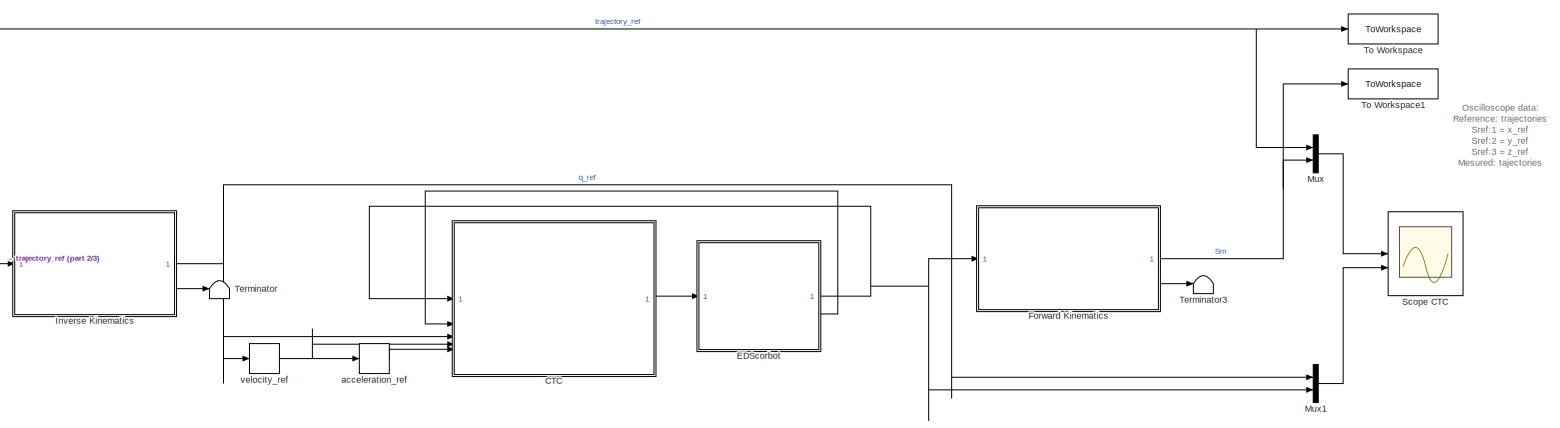
[diagram: root canvas - part 1/3, right side, full height]
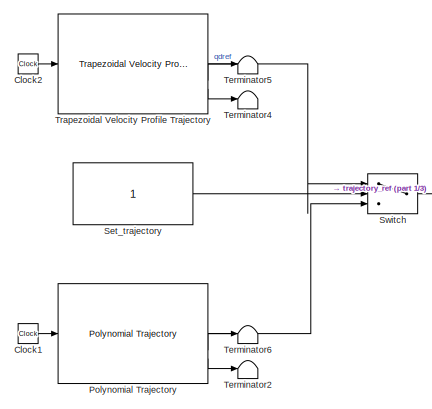
[diagram: root canvas - part 2/3, left side, full height]
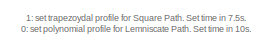
[diagram: root canvas - part 3/3, middle left region]
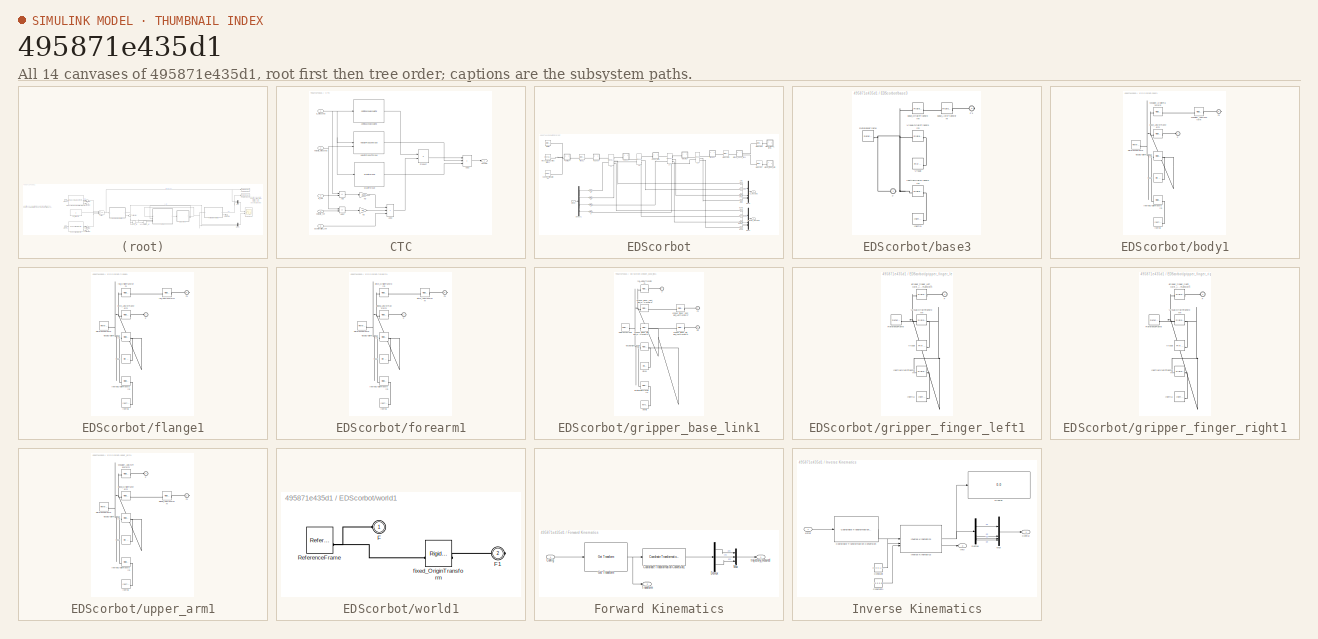
[diagram: thumbnail index - all 14 canvases of the model, root first then tree order]
MODEL slx_495871e435d1
KIND model
CONFIG AbsTol = auto
CONFIG EnableMultiTasking = off
CONFIG FixedStep = auto
CONFIG MaxStep = auto
CONFIG MinStep = auto
CONFIG RelTol = 1e-3
CONFIG SampleTimeConstraint = Unconstrained
CONFIG SolverName = ode23t
CONFIG StartTime = 0.0
CONFIG StopTime = 7.5
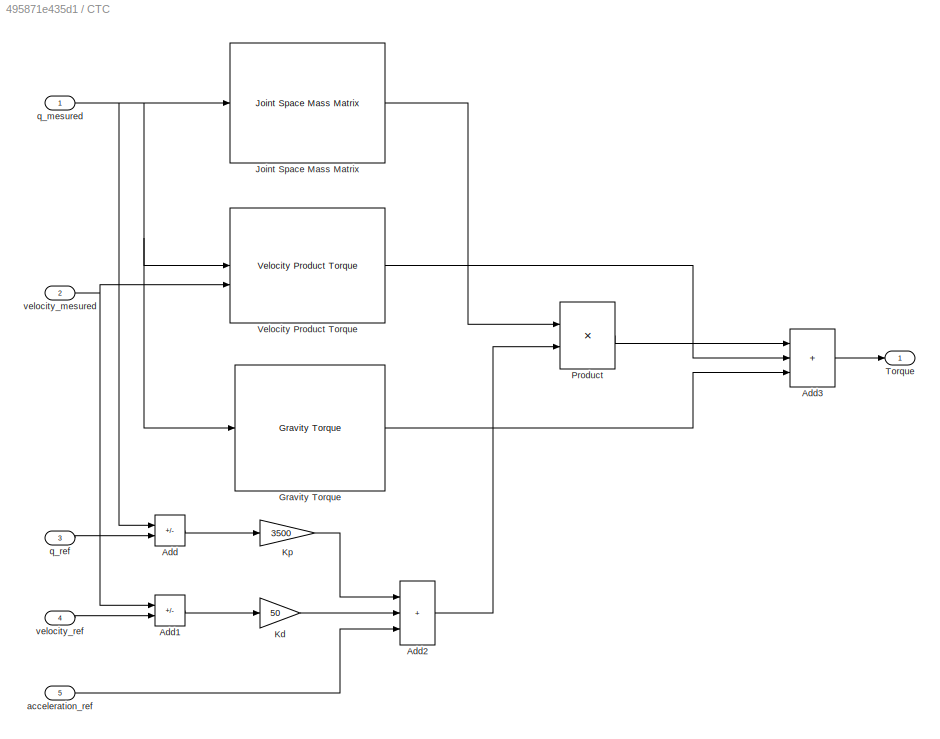
BLOCK [SubSystem] CTC
BLOCK [Sum] CTC/Add
  IconShape = rectangular
  Inputs = -+
BLOCK [Sum] CTC/Add1
  IconShape = rectangular
  Inputs = -+
BLOCK [Sum] CTC/Add2
  IconShape = rectangular
  Inputs = +++
BLOCK [Sum] CTC/Add3
  IconShape = rectangular
  Inputs = +++
BLOCK [Reference] CTC/Gravity Torque  REF=robotmaniplib/Gravity Torque
  SourceBlock = robotmaniplib/Gravity Torque
  SourceType = Gravity Torque
BLOCK [Reference] CTC/Joint Space Mass Matrix  REF=robotmaniplib/Joint Space Mass Matrix
  SourceBlock = robotmaniplib/Joint Space Mass Matrix
  SourceType = Joint Space Mass Matrix
BLOCK [Gain] CTC/Kd
  Gain = 50
BLOCK [Gain] CTC/Kp
  Gain = 3500
BLOCK [Product] CTC/Product
  Multiplication = Matrix(*)
BLOCK [Outport] CTC/Torque
BLOCK [Reference] CTC/Velocity Product Torque  REF=robotmaniplib/Velocity Product Torque
  SourceBlock = robotmaniplib/Velocity Product Torque
  SourceType = Velocity Product Torque
BLOCK [Inport] CTC/acceleration_ref
  Port = 5
BLOCK [Inport] CTC/q_mesured
BLOCK [Inport] CTC/q_ref
  Port = 3
BLOCK [Inport] CTC/velocity_mesured
  Port = 2
BLOCK [Inport] CTC/velocity_ref
  Port = 4
BLOCK [Clock] Clock1
BLOCK [Clock] Clock2
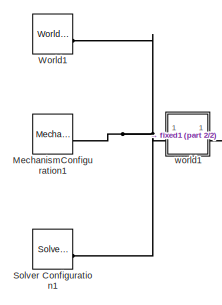
[diagram: EDScorbot - part 1/2, top left region]
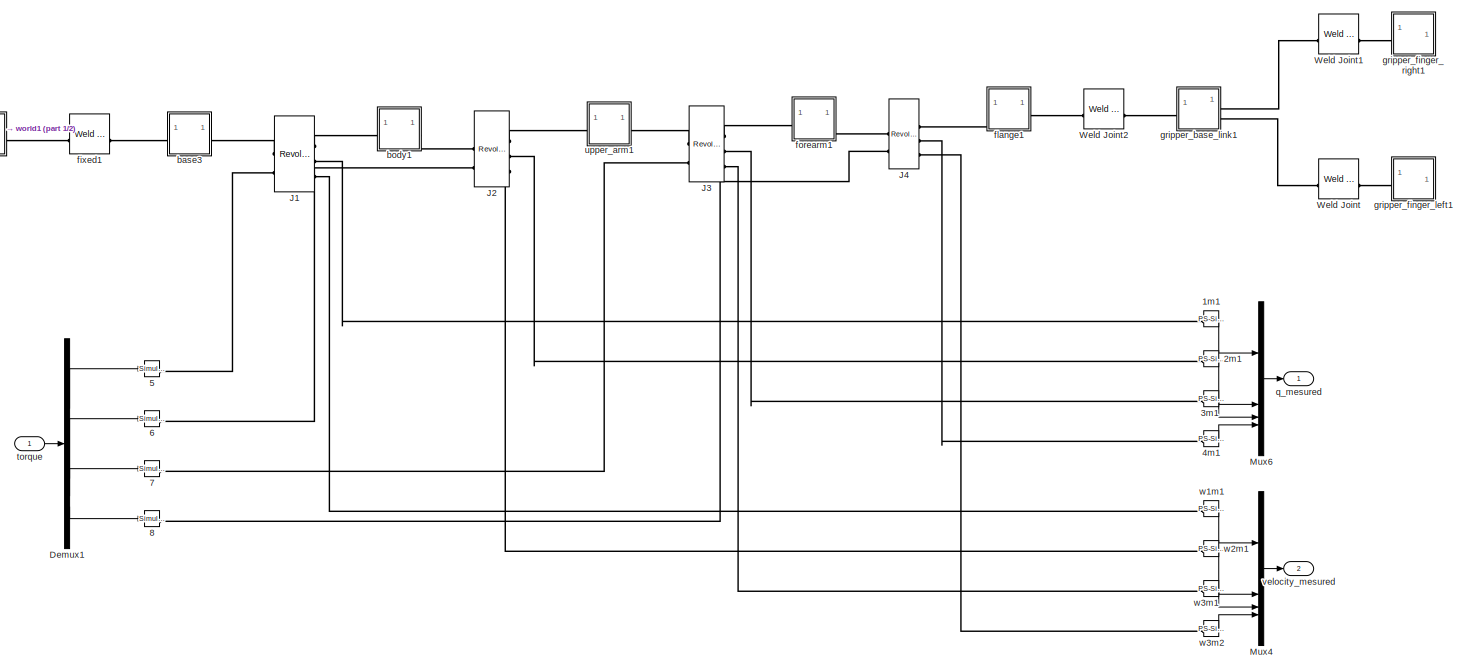
[diagram: EDScorbot - part 2/2, most of the canvas]
BLOCK [SubSystem] EDScorbot
BLOCK [Reference] EDScorbot/1m1  REF=nesl_utility/PS-Simulink
Converter
  SourceBlock = nesl_utility/PS-Simulink\nConverter
  SourceType = PS-Simulink\nConverter
BLOCK [Reference] EDScorbot/2m1  REF=nesl_utility/PS-Simulink
Converter
  SourceBlock = nesl_utility/PS-Simulink\nConverter
  SourceType = PS-Simulink\nConverter
BLOCK [Reference] EDScorbot/3m1  REF=nesl_utility/PS-Simulink
Converter
  SourceBlock = nesl_utility/PS-Simulink\nConverter
  SourceType = PS-Simulink\nConverter
BLOCK [Reference] EDScorbot/4m1  REF=nesl_utility/PS-Simulink
Converter
  SourceBlock = nesl_utility/PS-Simulink\nConverter
  SourceType = PS-Simulink\nConverter
BLOCK [Reference] EDScorbot/5  REF=nesl_utility/Simulink-PS
Converter
  SourceBlock = nesl_utility/Simulink-PS\nConverter
  SourceType = Simulink-PS\nConverter
BLOCK [Reference] EDScorbot/6  REF=nesl_utility/Simulink-PS
Converter
  SourceBlock = nesl_utility/Simulink-PS\nConverter
  SourceType = Simulink-PS\nConverter
BLOCK [Reference] EDScorbot/7  REF=nesl_utility/Simulink-PS
Converter
  SourceBlock = nesl_utility/Simulink-PS\nConverter
  SourceType = Simulink-PS\nConverter
BLOCK [Reference] EDScorbot/8  REF=nesl_utility/Simulink-PS
Converter
  SourceBlock = nesl_utility/Simulink-PS\nConverter
  SourceType = Simulink-PS\nConverter
BLOCK [Demux] EDScorbot/Demux1
BLOCK [Reference] EDScorbot/J1  REF=sm_lib/Joints/Revolute Joint
  SourceBlock = sm_lib/Joints/Revolute Joint
  SourceType = Revolute Joint
BLOCK [Reference] EDScorbot/J2  REF=sm_lib/Joints/Revolute Joint
  SourceBlock = sm_lib/Joints/Revolute Joint
  SourceType = Revolute Joint
BLOCK [Reference] EDScorbot/J3  REF=sm_lib/Joints/Revolute Joint
  SourceBlock = sm_lib/Joints/Revolute Joint
  SourceType = Revolute Joint
BLOCK [Reference] EDScorbot/J4  REF=sm_lib/Joints/Revolute Joint
  SourceBlock = sm_lib/Joints/Revolute Joint
  SourceType = Revolute Joint
BLOCK [Reference] EDScorbot/MechanismConfiguration1  REF=sm_lib/Utilities/Mechanism
Configuration
  SourceBlock = sm_lib/Utilities/Mechanism\nConfiguration
  SourceType = Mechanism\nConfiguration
BLOCK [Mux] EDScorbot/Mux4
  DisplayOption = bar
BLOCK [Mux] EDScorbot/Mux6
  DisplayOption = bar
BLOCK [Reference] EDScorbot/Solver Configuration1  REF=nesl_utility/Solver
Configuration
  SourceBlock = nesl_utility/Solver\nConfiguration
  SourceType = Solver\nConfiguration
BLOCK [Reference] EDScorbot/Weld Joint  REF=sm_lib/Joints/Weld Joint
  SourceBlock = sm_lib/Joints/Weld Joint
  SourceType = Weld Joint
BLOCK [Reference] EDScorbot/Weld Joint1  REF=sm_lib/Joints/Weld Joint
  SourceBlock = sm_lib/Joints/Weld Joint
  SourceType = Weld Joint
BLOCK [Reference] EDScorbot/Weld Joint2  REF=sm_lib/Joints/Weld Joint
  SourceBlock = sm_lib/Joints/Weld Joint
  SourceType = Weld Joint
BLOCK [Reference] EDScorbot/World1  REF=sm_lib/Frames and
Transforms/World Frame
  SourceBlock = sm_lib/Frames and\nTransforms/World Frame
  SourceType = World Frame
BLOCK [SubSystem] EDScorbot/base3
BLOCK [PMIOPort] EDScorbot/base3/F
  Side = Left
BLOCK [PMIOPort] EDScorbot/base3/F1
  Port = 2
  Side = Right
BLOCK [Reference] EDScorbot/base3/Inertia  REF=sm_lib/Body Elements/Inertia
  SourceBlock = sm_lib/Body Elements/Inertia
  SourceType = Inertia
BLOCK [Reference] EDScorbot/base3/InertiaOriginTransform  REF=sm_lib/Frames and
Transforms/Rigid
Transform
  SourceBlock = sm_lib/Frames and\nTransforms/Rigid\nTransform
  SourceType = Rigid\nTransform
BLOCK [Reference] EDScorbot/base3/ReferenceFrame  REF=sm_lib/Frames and
Transforms/Reference
Frame
  SourceBlock = sm_lib/Frames and\nTransforms/Reference\nFrame
  SourceType = Reference\nFrame
BLOCK [Reference] EDScorbot/base3/Visual  REF=sm_lib/Body Elements/File Solid
  SourceBlock = sm_lib/Body Elements/File Solid
  SourceType = File Solid
BLOCK [Reference] EDScorbot/base3/VisualOriginTransform  REF=sm_lib/Frames and
Transforms/Rigid
Transform
  SourceBlock = sm_lib/Frames and\nTransforms/Rigid\nTransform
  SourceType = Rigid\nTransform
BLOCK [Reference] EDScorbot/base3/base_AxisTransform  REF=sm_lib/Frames and
Transforms/Rigid
Transform
  SourceBlock = sm_lib/Frames and\nTransforms/Rigid\nTransform
  SourceType = Rigid\nTransform
BLOCK [Reference] EDScorbot/base3/base_OriginTransform  REF=sm_lib/Frames and
Transforms/Rigid
Transform
  SourceBlock = sm_lib/Frames and\nTransforms/Rigid\nTransform
  SourceType = Rigid\nTransform
BLOCK [SubSystem] EDScorbot/body1
BLOCK [PMIOPort] EDScorbot/body1/F
  Side = Left
BLOCK [PMIOPort] EDScorbot/body1/F1
  Port = 2
  Side = Right
BLOCK [Reference] EDScorbot/body1/Inertia  REF=sm_lib/Body Elements/Inertia
  SourceBlock = sm_lib/Body Elements/Inertia
  SourceType = Inertia
BLOCK [Reference] EDScorbot/body1/InertiaOriginTransform  REF=sm_lib/Frames and
Transforms/Rigid
Transform
  SourceBlock = sm_lib/Frames and\nTransforms/Rigid\nTransform
  SourceType = Rigid\nTransform
BLOCK [Reference] EDScorbot/body1/ReferenceFrame  REF=sm_lib/Frames and
Transforms/Reference
Frame
  SourceBlock = sm_lib/Frames and\nTransforms/Reference\nFrame
  SourceType = Reference\nFrame
BLOCK [Reference] EDScorbot/body1/Visual  REF=sm_lib/Body Elements/File Solid
  SourceBlock = sm_lib/Body Elements/File Solid
  SourceType = File Solid
BLOCK [Reference] EDScorbot/body1/VisualOriginTransform  REF=sm_lib/Frames and
Transforms/Rigid
Transform
  SourceBlock = sm_lib/Frames and\nTransforms/Rigid\nTransform
  SourceType = Rigid\nTransform
BLOCK [Reference] EDScorbot/body1/base_AxisInvTransform  REF=sm_lib/Frames and
Transforms/Rigid
Transform
  SourceBlock = sm_lib/Frames and\nTransforms/Rigid\nTransform
  SourceType = Rigid\nTransform
BLOCK [Reference] EDScorbot/body1/shoulder_AxisTransform  REF=sm_lib/Frames and
Transforms/Rigid
Transform
  SourceBlock = sm_lib/Frames and\nTransforms/Rigid\nTransform
  SourceType = Rigid\nTransform
BLOCK [Reference] EDScorbot/body1/shoulder_OriginTransform  REF=sm_lib/Frames and
Transforms/Rigid
Transform
  SourceBlock = sm_lib/Frames and\nTransforms/Rigid\nTransform
  SourceType = Rigid\nTransform
BLOCK [Reference] EDScorbot/fixed1  REF=sm_lib/Joints/Weld Joint
  SourceBlock = sm_lib/Joints/Weld Joint
  SourceType = Weld Joint
BLOCK [SubSystem] EDScorbot/flange1
BLOCK [PMIOPort] EDScorbot/flange1/F
  Side = Left
BLOCK [PMIOPort] EDScorbot/flange1/F1
  Port = 2
  Side = Right
BLOCK [Reference] EDScorbot/flange1/Inertia  REF=sm_lib/Body Elements/Inertia
  SourceBlock = sm_lib/Body Elements/Inertia
  SourceType = Inertia
BLOCK [Reference] EDScorbot/flange1/InertiaOriginTransform  REF=sm_lib/Frames and
Transforms/Rigid
Transform
  SourceBlock = sm_lib/Frames and\nTransforms/Rigid\nTransform
  SourceType = Rigid\nTransform
BLOCK [Reference] EDScorbot/flange1/ReferenceFrame  REF=sm_lib/Frames and
Transforms/Reference
Frame
  SourceBlock = sm_lib/Frames and\nTransforms/Reference\nFrame
  SourceType = Reference\nFrame
BLOCK [Reference] EDScorbot/flange1/Visual  REF=sm_lib/Body Elements/File Solid
  SourceBlock = sm_lib/Body Elements/File Solid
  SourceType = File Solid
BLOCK [Reference] EDScorbot/flange1/VisualOriginTransform  REF=sm_lib/Frames and
Transforms/Rigid
Transform
  SourceBlock = sm_lib/Frames and\nTransforms/Rigid\nTransform
  SourceType = Rigid\nTransform
BLOCK [Reference] EDScorbot/flange1/pitch_AxisInvTransform  REF=sm_lib/Frames and
Transforms/Rigid
Transform
  SourceBlock = sm_lib/Frames and\nTransforms/Rigid\nTransform
  SourceType = Rigid\nTransform
BLOCK [Reference] EDScorbot/flange1/roll_AxisTransform  REF=sm_lib/Frames and
Transforms/Rigid
Transform
  SourceBlock = sm_lib/Frames and\nTransforms/Rigid\nTransform
  SourceType = Rigid\nTransform
BLOCK [Reference] EDScorbot/flange1/roll_OriginTransform  REF=sm_lib/Frames and
Transforms/Rigid
Transform
  SourceBlock = sm_lib/Frames and\nTransforms/Rigid\nTransform
  SourceType = Rigid\nTransform
BLOCK [SubSystem] EDScorbot/forearm1
BLOCK [PMIOPort] EDScorbot/forearm1/F
  Side = Left
BLOCK [PMIOPort] EDScorbot/forearm1/F1
  Port = 2
  Side = Right
BLOCK [Reference] EDScorbot/forearm1/Inertia  REF=sm_lib/Body Elements/Inertia
  SourceBlock = sm_lib/Body Elements/Inertia
  SourceType = Inertia
BLOCK [Reference] EDScorbot/forearm1/InertiaOriginTransform  REF=sm_lib/Frames and
Transforms/Rigid
Transform
  SourceBlock = sm_lib/Frames and\nTransforms/Rigid\nTransform
  SourceType = Rigid\nTransform
BLOCK [Reference] EDScorbot/forearm1/ReferenceFrame  REF=sm_lib/Frames and
Transforms/Reference
Frame
  SourceBlock = sm_lib/Frames and\nTransforms/Reference\nFrame
  SourceType = Reference\nFrame
BLOCK [Reference] EDScorbot/forearm1/Visual  REF=sm_lib/Body Elements/File Solid
  SourceBlock = sm_lib/Body Elements/File Solid
  SourceType = File Solid
BLOCK [Reference] EDScorbot/forearm1/VisualOriginTransform  REF=sm_lib/Frames and
Transforms/Rigid
Transform
  SourceBlock = sm_lib/Frames and\nTransforms/Rigid\nTransform
  SourceType = Rigid\nTransform
BLOCK [Reference] EDScorbot/forearm1/elbow_AxisInvTransform  REF=sm_lib/Frames and
Transforms/Rigid
Transform
  SourceBlock = sm_lib/Frames and\nTransforms/Rigid\nTransform
  SourceType = Rigid\nTransform
BLOCK [Reference] EDScorbot/forearm1/pitch_AxisTransform  REF=sm_lib/Frames and
Transforms/Rigid
Transform
  SourceBlock = sm_lib/Frames and\nTransforms/Rigid\nTransform
  SourceType = Rigid\nTransform
BLOCK [Reference] EDScorbot/forearm1/pitch_OriginTransform  REF=sm_lib/Frames and
Transforms/Rigid
Transform
  SourceBlock = sm_lib/Frames and\nTransforms/Rigid\nTransform
  SourceType = Rigid\nTransform
BLOCK [SubSystem] EDScorbot/gripper_base_link1
BLOCK [PMIOPort] EDScorbot/gripper_base_link1/F
  Side = Left
BLOCK [PMIOPort] EDScorbot/gripper_base_link1/F1
  Port = 3
  Side = Right
BLOCK [PMIOPort] EDScorbot/gripper_base_link1/F2
  Port = 2
  Side = Right
BLOCK [Reference] EDScorbot/gripper_base_link1/Inertia  REF=sm_lib/Body Elements/Inertia
  SourceBlock = sm_lib/Body Elements/Inertia
  SourceType = Inertia
BLOCK [Reference] EDScorbot/gripper_base_link1/InertiaOriginTransform  REF=sm_lib/Frames and
Transforms/Rigid
Transform
  SourceBlock = sm_lib/Frames and\nTransforms/Rigid\nTransform
  SourceType = Rigid\nTransform
BLOCK [Reference] EDScorbot/gripper_base_link1/ReferenceFrame  REF=sm_lib/Frames and
Transforms/Reference
Frame
  SourceBlock = sm_lib/Frames and\nTransforms/Reference\nFrame
  SourceType = Reference\nFrame
BLOCK [Reference] EDScorbot/gripper_base_link1/Visual  REF=sm_lib/Body Elements/File Solid
  SourceBlock = sm_lib/Body Elements/File Solid
  SourceType = File Solid
BLOCK [Reference] EDScorbot/gripper_base_link1/VisualOriginTransform  REF=sm_lib/Frames and
Transforms/Rigid
Transform
  SourceBlock = sm_lib/Frames and\nTransforms/Rigid\nTransform
  SourceType = Rigid\nTransform
BLOCK [Reference] EDScorbot/gripper_base_link1/gripper_finger_left_joint_AxisTransform  REF=sm_lib/Frames and
Transforms/Rigid
Transform
  SourceBlock = sm_lib/Frames and\nTransforms/Rigid\nTransform
  SourceType = Rigid\nTransform
BLOCK [Reference] EDScorbot/gripper_base_link1/gripper_finger_left_joint_OriginTransform  REF=sm_lib/Frames and
Transforms/Rigid
Transform
  SourceBlock = sm_lib/Frames and\nTransforms/Rigid\nTransform
  SourceType = Rigid\nTransform
BLOCK [Reference] EDScorbot/gripper_base_link1/gripper_finger_right_joint_AxisTransform  REF=sm_lib/Frames and
Transforms/Rigid
Transform
  SourceBlock = sm_lib/Frames and\nTransforms/Rigid\nTransform
  SourceType = Rigid\nTransform
BLOCK [Reference] EDScorbot/gripper_base_link1/gripper_finger_right_joint_OriginTransform  REF=sm_lib/Frames and
Transforms/Rigid
Transform
  SourceBlock = sm_lib/Frames and\nTransforms/Rigid\nTransform
  SourceType = Rigid\nTransform
BLOCK [Reference] EDScorbot/gripper_base_link1/roll_AxisInvTransform  REF=sm_lib/Frames and
Transforms/Rigid
Transform
  SourceBlock = sm_lib/Frames and\nTransforms/Rigid\nTransform
  SourceType = Rigid\nTransform
BLOCK [SubSystem] EDScorbot/gripper_finger_left1
BLOCK [PMIOPort] EDScorbot/gripper_finger_left1/F
  Side = Left
BLOCK [Reference] EDScorbot/gripper_finger_left1/Inertia  REF=sm_lib/Body Elements/Inertia
  SourceBlock = sm_lib/Body Elements/Inertia
  SourceType = Inertia
BLOCK [Reference] EDScorbot/gripper_finger_left1/InertiaOriginTransform  REF=sm_lib/Frames and
Transforms/Rigid
Transform
  SourceBlock = sm_lib/Frames and\nTransforms/Rigid\nTransform
  SourceType = Rigid\nTransform
BLOCK [Reference] EDScorbot/gripper_finger_left1/ReferenceFrame  REF=sm_lib/Frames and
Transforms/Reference
Frame
  SourceBlock = sm_lib/Frames and\nTransforms/Reference\nFrame
  SourceType = Reference\nFrame
BLOCK [Reference] EDScorbot/gripper_finger_left1/Visual  REF=sm_lib/Body Elements/File Solid
  SourceBlock = sm_lib/Body Elements/File Solid
  SourceType = File Solid
BLOCK [Reference] EDScorbot/gripper_finger_left1/VisualOriginTransform  REF=sm_lib/Frames and
Transforms/Rigid
Transform
  SourceBlock = sm_lib/Frames and\nTransforms/Rigid\nTransform
  SourceType = Rigid\nTransform
BLOCK [Reference] EDScorbot/gripper_finger_left1/gripper_finger_left_joint_AxisInvTransform  REF=sm_lib/Frames and
Transforms/Rigid
Transform
  SourceBlock = sm_lib/Frames and\nTransforms/Rigid\nTransform
  SourceType = Rigid\nTransform
BLOCK [SubSystem] EDScorbot/gripper_finger_right1
BLOCK [PMIOPort] EDScorbot/gripper_finger_right1/F
  Side = Left
BLOCK [Reference] EDScorbot/gripper_finger_right1/Inertia  REF=sm_lib/Body Elements/Inertia
  SourceBlock = sm_lib/Body Elements/Inertia
  SourceType = Inertia
BLOCK [Reference] EDScorbot/gripper_finger_right1/InertiaOriginTransform  REF=sm_lib/Frames and
Transforms/Rigid
Transform
  SourceBlock = sm_lib/Frames and\nTransforms/Rigid\nTransform
  SourceType = Rigid\nTransform
BLOCK [Reference] EDScorbot/gripper_finger_right1/ReferenceFrame  REF=sm_lib/Frames and
Transforms/Reference
Frame
  SourceBlock = sm_lib/Frames and\nTransforms/Reference\nFrame
  SourceType = Reference\nFrame
BLOCK [Reference] EDScorbot/gripper_finger_right1/Visual  REF=sm_lib/Body Elements/File Solid
  SourceBlock = sm_lib/Body Elements/File Solid
  SourceType = File Solid
BLOCK [Reference] EDScorbot/gripper_finger_right1/VisualOriginTransform  REF=sm_lib/Frames and
Transforms/Rigid
Transform
  SourceBlock = sm_lib/Frames and\nTransforms/Rigid\nTransform
  SourceType = Rigid\nTransform
BLOCK [Reference] EDScorbot/gripper_finger_right1/gripper_finger_right_joint_AxisInvTransform  REF=sm_lib/Frames and
Transforms/Rigid
Transform
  SourceBlock = sm_lib/Frames and\nTransforms/Rigid\nTransform
  SourceType = Rigid\nTransform
BLOCK [Outport] EDScorbot/q_mesured
BLOCK [Inport] EDScorbot/torque
BLOCK [SubSystem] EDScorbot/upper_arm1
BLOCK [PMIOPort] EDScorbot/upper_arm1/F
  Side = Left
BLOCK [PMIOPort] EDScorbot/upper_arm1/F1
  Port = 2
  Side = Right
BLOCK [Reference] EDScorbot/upper_arm1/Inertia  REF=sm_lib/Body Elements/Inertia
  SourceBlock = sm_lib/Body Elements/Inertia
  SourceType = Inertia
BLOCK [Reference] EDScorbot/upper_arm1/InertiaOriginTransform  REF=sm_lib/Frames and
Transforms/Rigid
Transform
  SourceBlock = sm_lib/Frames and\nTransforms/Rigid\nTransform
  SourceType = Rigid\nTransform
BLOCK [Reference] EDScorbot/upper_arm1/ReferenceFrame  REF=sm_lib/Frames and
Transforms/Reference
Frame
  SourceBlock = sm_lib/Frames and\nTransforms/Reference\nFrame
  SourceType = Reference\nFrame
BLOCK [Reference] EDScorbot/upper_arm1/Visual  REF=sm_lib/Body Elements/File Solid
  SourceBlock = sm_lib/Body Elements/File Solid
  SourceType = File Solid
BLOCK [Reference] EDScorbot/upper_arm1/VisualOriginTransform  REF=sm_lib/Frames and
Transforms/Rigid
Transform
  SourceBlock = sm_lib/Frames and\nTransforms/Rigid\nTransform
  SourceType = Rigid\nTransform
BLOCK [Reference] EDScorbot/upper_arm1/elbow_AxisTransform  REF=sm_lib/Frames and
Transforms/Rigid
Transform
  SourceBlock = sm_lib/Frames and\nTransforms/Rigid\nTransform
  SourceType = Rigid\nTransform
BLOCK [Reference] EDScorbot/upper_arm1/elbow_OriginTransform  REF=sm_lib/Frames and
Transforms/Rigid
Transform
  SourceBlock = sm_lib/Frames and\nTransforms/Rigid\nTransform
  SourceType = Rigid\nTransform
BLOCK [Reference] EDScorbot/upper_arm1/shoulder_AxisInvTransform  REF=sm_lib/Frames and
Transforms/Rigid
Transform
  SourceBlock = sm_lib/Frames and\nTransforms/Rigid\nTransform
  SourceType = Rigid\nTransform
BLOCK [Outport] EDScorbot/velocity_mesured
  Port = 2
BLOCK [Reference] EDScorbot/w1m1  REF=nesl_utility/PS-Simulink
Converter
  SourceBlock = nesl_utility/PS-Simulink\nConverter
  SourceType = PS-Simulink\nConverter
BLOCK [Reference] EDScorbot/w2m1  REF=nesl_utility/PS-Simulink
Converter
  SourceBlock = nesl_utility/PS-Simulink\nConverter
  SourceType = PS-Simulink\nConverter
BLOCK [Reference] EDScorbot/w3m1  REF=nesl_utility/PS-Simulink
Converter
  SourceBlock = nesl_utility/PS-Simulink\nConverter
  SourceType = PS-Simulink\nConverter
BLOCK [Reference] EDScorbot/w3m2  REF=nesl_utility/PS-Simulink
Converter
  SourceBlock = nesl_utility/PS-Simulink\nConverter
  SourceType = PS-Simulink\nConverter
BLOCK [SubSystem] EDScorbot/world1
BLOCK [PMIOPort] EDScorbot/world1/F
  Side = Left
BLOCK [PMIOPort] EDScorbot/world1/F1
  Port = 2
  Side = Right
BLOCK [Reference] EDScorbot/world1/ReferenceFrame  REF=sm_lib/Frames and
Transforms/Reference
Frame
  SourceBlock = sm_lib/Frames and\nTransforms/Reference\nFrame
  SourceType = Reference\nFrame
BLOCK [Reference] EDScorbot/world1/fixed_OriginTransform  REF=sm_lib/Frames and
Transforms/Rigid
Transform
  SourceBlock = sm_lib/Frames and\nTransforms/Rigid\nTransform
  SourceType = Rigid\nTransform
BLOCK [SubSystem] Forward Kinematics
BLOCK [Inport] Forward Kinematics/Config
BLOCK [Reference] Forward Kinematics/Coordinate Transformation Conversion1  REF=robotcorelib/Coordinate Transformation Conversion
  LibrarySourceBlock = robotutilslib/Coordinate Transformation Conversion
  SourceBlock = robotcorelib/Coordinate Transformation Conversion
  SourceType = robotics.slcore.internal.block.CoordinateTransformationConversion
BLOCK [Demux] Forward Kinematics/Demux
  Outputs = 3
BLOCK [Reference] Forward Kinematics/Get Transform  REF=robotmaniplib/Get Transform
  SourceBlock = robotmaniplib/Get Transform
  SourceType = Get Transform
BLOCK [Mux] Forward Kinematics/Mux
  DisplayOption = bar
  Inputs = 3
BLOCK [Outport] Forward Kinematics/Transform
  Port = 2
BLOCK [Outport] Forward Kinematics/trajectory_mesured
BLOCK [SubSystem] Inverse Kinematics
BLOCK [Outport] Inverse Kinematics/Config
BLOCK [Constant] Inverse Kinematics/Constant
  Value = [0 0 0  1 1 1]
BLOCK [Constant] Inverse Kinematics/Constant1
  Value = [0 0 0 0]
BLOCK [Reference] Inverse Kinematics/Coordinate Transformation Conversion  REF=robotcorelib/Coordinate Transformation Conversion
  LibrarySourceBlock = robotutilslib/Coordinate Transformation Conversion
  SourceBlock = robotcorelib/Coordinate Transformation Conversion
  SourceType = robotics.slcore.internal.block.CoordinateTransformationConversion
BLOCK [Demux] Inverse Kinematics/Demux
BLOCK [Display] Inverse Kinematics/Display
  Decimation = 1
BLOCK [Outport] Inverse Kinematics/Info
  Port = 2
BLOCK [Reference] Inverse Kinematics/Inverse Kinematics  REF=robotmaniplib/Inverse Kinematics
  SourceBlock = robotmaniplib/Inverse Kinematics
  SourceType = Inverse Kinematics
BLOCK [Mux] Inverse Kinematics/Mux
  DisplayOption = bar
BLOCK [Inport] Inverse Kinematics/xyzref
BLOCK [Mux] Mux
  DisplayOption = bar
  Inputs = 2
BLOCK [Mux] Mux1
  DisplayOption = bar
  Inputs = 2
BLOCK [Reference] Polynomial Trajectory  REF=robotcorelib/Polynomial Trajectory
  LibrarySourceBlock = robotutilslib/Polynomial Trajectory
  SourceBlock = robotcorelib/Polynomial Trajectory
  SourceType = robotics.slcore.internal.block.PolyTrajSys
BLOCK [Scope] Scope CTC
  Floating = off
  NumInputPorts = 2
  ScopeSpecificationString = Simulink.scopes.TimeScopeBlockCfg('CurrentConfiguration', extmgr.ConfigurationSet(extmgr.Configuration('Core','General UI',true),extmgr.Configuration('Core','Source UI',true),extmgr.Configuration('Sources','WiredSimulink',true),extmgr.Configuration('Visuals','Time Domain',true,'SerializedDisplays',{struct('MinYLimReal','0.01302','MaxYLimReal','0.95041','YLabelReal','','MinYLimMag','0.01302','MaxYL...<+2673ch>
BLOCK [Constant] Set_trajectory
BLOCK [Switch] Switch
  Criteria = u2 > Threshold
  InputSameDT = off
  SaturateOnIntegerOverflow = off
BLOCK [Terminator] Terminator
BLOCK [Terminator] Terminator2
BLOCK [Terminator] Terminator3
BLOCK [Terminator] Terminator4
BLOCK [Terminator] Terminator5
BLOCK [Terminator] Terminator6
BLOCK [ToWorkspace] To Workspace
  FixptAsFi = on
  MaxDataPoints = inf
  SampleTime = -1
  SaveFormat = Timeseries
  VariableName = ref_CTC
BLOCK [ToWorkspace] To Workspace1
  FixptAsFi = on
  MaxDataPoints = inf
  SampleTime = -1
  SaveFormat = Timeseries
  VariableName = m_CTC
BLOCK [Reference] Trapezoidal Velocity Profile Trajectory  REF=robotcorelib/Trapezoidal Velocity Profile Trajectory
  LibrarySourceBlock = robotutilslib/Trapezoidal Velocity Profile Trajectory
  SourceBlock = robotcorelib/Trapezoidal Velocity Profile Trajectory
  SourceType = robotics.slcore.internal.block.TrapVelTrajSys
BLOCK [Derivative] acceleration_ref
BLOCK [Derivative] velocity_ref
ANNOTATION (root): Oscilloscope data: Reference: trajectories Sref:1 = x_ref Sref:2 = y_ref Sref:3 = z_ref Mesured: tajectories Sm:1 = x_m Sm:2 = y_m Sm:3 = z_m Reference: angles of joints qref:1 = q1 qref:2 = q2 qref:3 = q3 qref:4 = q4 Mesured: angles of joints qm:1 = q1_m qm:2 = q2_m qm:3 = q3_m qm:4 = q4_m
ANNOTATION (root): 1: set trapezoydal profile for Square Path. Set time in 7.5s. 0: set polynomial profile for Lemniscate Path. Set time in 10s.
LINE CTC/Add1:1 -> CTC/Kd:1
LINE CTC/Add2:1 -> CTC/Product:2
LINE CTC/Add3:1 -> CTC/Torque:1
LINE CTC/Add:1 -> CTC/Kp:1
LINE CTC/Gravity Torque:1 -> CTC/Add3:3
LINE CTC/Joint Space Mass Matrix:1 -> CTC/Product:1
LINE CTC/Kd:1 -> CTC/Add2:2
LINE CTC/Kp:1 -> CTC/Add2:1
LINE CTC/Product:1 -> CTC/Add3:1
LINE CTC/Velocity Product Torque:1 -> CTC/Add3:2
LINE CTC/acceleration_ref:1 -> CTC/Add2:3
NET CTC/q_mesured:1 -> CTC/Add:1, CTC/Gravity Torque:1, CTC/Joint Space Mass Matrix:1, CTC/Velocity Product Torque:1
LINE CTC/q_ref:1 -> CTC/Add:2
NET CTC/velocity_mesured:1 -> CTC/Add1:1, CTC/Velocity Product Torque:2
LINE CTC/velocity_ref:1 -> CTC/Add1:2
LINE CTC:1 -> EDScorbot:1
LINE Clock1:1 -> Polynomial Trajectory:1
LINE Clock2:1 -> Trapezoidal Velocity Profile Trajectory:1
LINE EDScorbot/1m1:1 -> EDScorbot/Mux6:1
LINE EDScorbot/2m1:1 -> EDScorbot/Mux6:2
LINE EDScorbot/3m1:1 -> EDScorbot/Mux6:3
LINE EDScorbot/4m1:1 -> EDScorbot/Mux6:4
LINE EDScorbot/Demux1:1 -> EDScorbot/5:1
LINE EDScorbot/Demux1:2 -> EDScorbot/6:1
LINE EDScorbot/Demux1:3 -> EDScorbot/7:1
LINE EDScorbot/Demux1:4 -> EDScorbot/8:1
LINE EDScorbot/Mux4:1 -> EDScorbot/velocity_mesured:1
LINE EDScorbot/Mux6:1 -> EDScorbot/q_mesured:1
LINE EDScorbot/torque:1 -> EDScorbot/Demux1:1
LINE EDScorbot/w1m1:1 -> EDScorbot/Mux4:1
LINE EDScorbot/w2m1:1 -> EDScorbot/Mux4:2
LINE EDScorbot/w3m1:1 -> EDScorbot/Mux4:3
LINE EDScorbot/w3m2:1 -> EDScorbot/Mux4:4
NET EDScorbot:1 -> CTC:1, Forward Kinematics:1, Mux1:2
LINE EDScorbot:2 -> CTC:2
LINE Forward Kinematics/Config:1 -> Forward Kinematics/Get Transform:1
LINE Forward Kinematics/Coordinate Transformation Conversion1:1 -> Forward Kinematics/Demux:1
LINE Forward Kinematics/Demux:1 -> Forward Kinematics/Mux:1
LINE Forward Kinematics/Demux:2 -> Forward Kinematics/Mux:2
LINE Forward Kinematics/Demux:3 -> Forward Kinematics/Mux:3
NET Forward Kinematics/Get Transform:1 -> Forward Kinematics/Coordinate Transformation Conversion1:1, Forward Kinematics/Transform:1
LINE Forward Kinematics/Mux:1 -> Forward Kinematics/trajectory_mesured:1
NET Forward Kinematics:1 -> Mux:2, To Workspace1:1
LINE Forward Kinematics:2 -> Terminator3:1
LINE Inverse Kinematics/Constant1:1 -> Inverse Kinematics/Inverse Kinematics:3
LINE Inverse Kinematics/Constant:1 -> Inverse Kinematics/Inverse Kinematics:2
LINE Inverse Kinematics/Coordinate Transformation Conversion:1 -> Inverse Kinematics/Inverse Kinematics:1
LINE Inverse Kinematics/Demux:1 -> Inverse Kinematics/Mux:1
LINE Inverse Kinematics/Demux:2 -> Inverse Kinematics/Mux:2
LINE Inverse Kinematics/Demux:3 -> Inverse Kinematics/Mux:3
LINE Inverse Kinematics/Demux:4 -> Inverse Kinematics/Mux:4
NET Inverse Kinematics/Inverse Kinematics:1 -> Inverse Kinematics/Demux:1, Inverse Kinematics/Display:1
LINE Inverse Kinematics/Inverse Kinematics:2 -> Inverse Kinematics/Info:1
LINE Inverse Kinematics/Mux:1 -> Inverse Kinematics/Config:1
LINE Inverse Kinematics/xyzref:1 -> Inverse Kinematics/Coordinate Transformation Conversion:1
NET Inverse Kinematics:1 -> CTC:3, Mux1:1, velocity_ref:1
LINE Inverse Kinematics:2 -> Terminator:1
LINE Mux1:1 -> Scope CTC:2
LINE Mux:1 -> Scope CTC:1
LINE Polynomial Trajectory:1 -> Switch:3
LINE Polynomial Trajectory:2 -> Terminator6:1
LINE Polynomial Trajectory:3 -> Terminator2:1
LINE Set_trajectory:1 -> Switch:2
NET Switch:1 -> Inverse Kinematics:1, Mux:1, To Workspace:1
LINE Trapezoidal Velocity Profile Trajectory:1 -> Switch:1
LINE Trapezoidal Velocity Profile Trajectory:2 -> Terminator5:1
LINE Trapezoidal Velocity Profile Trajectory:3 -> Terminator4:1
LINE acceleration_ref:1 -> CTC:5
NET velocity_ref:1 -> CTC:4, acceleration_ref:1
PLINE EDScorbot/1m1:LConn1 -- EDScorbot/J1:RConn2
PLINE EDScorbot/2m1:LConn1 -- EDScorbot/J2:RConn2
PLINE EDScorbot/3m1:LConn1 -- EDScorbot/J3:RConn2
PLINE EDScorbot/4m1:LConn1 -- EDScorbot/J4:RConn2
PLINE EDScorbot/5:RConn1 -- EDScorbot/J1:LConn2
PLINE EDScorbot/6:RConn1 -- EDScorbot/J2:LConn2
PLINE EDScorbot/7:RConn1 -- EDScorbot/J3:LConn2
PLINE EDScorbot/8:RConn1 -- EDScorbot/J4:LConn2
PLINE EDScorbot/J1:LConn1 -- EDScorbot/base3:RConn1
PLINE EDScorbot/J1:RConn1 -- EDScorbot/body1:LConn1
PLINE EDScorbot/J1:RConn3 -- EDScorbot/w1m1:LConn1
PLINE EDScorbot/J2:LConn1 -- EDScorbot/body1:RConn1
PLINE EDScorbot/J2:RConn1 -- EDScorbot/upper_arm1:LConn1
PLINE EDScorbot/J2:RConn3 -- EDScorbot/w2m1:LConn1
PLINE EDScorbot/J3:LConn1 -- EDScorbot/upper_arm1:RConn1
PLINE EDScorbot/J3:RConn1 -- EDScorbot/forearm1:LConn1
PLINE EDScorbot/J3:RConn3 -- EDScorbot/w3m1:LConn1
PLINE EDScorbot/J4:LConn1 -- EDScorbot/forearm1:RConn1
PLINE EDScorbot/J4:RConn1 -- EDScorbot/flange1:LConn1
PLINE EDScorbot/J4:RConn3 -- EDScorbot/w3m2:LConn1
PNET net1: EDScorbot/MechanismConfiguration1:RConn1 -- EDScorbot/Solver Configuration1:RConn1 -- EDScorbot/World1:RConn1 -- EDScorbot/world1:LConn1
PLINE EDScorbot/Weld Joint1:LConn1 -- EDScorbot/gripper_base_link1:RConn1
PLINE EDScorbot/Weld Joint1:RConn1 -- EDScorbot/gripper_finger_right1:LConn1
PLINE EDScorbot/Weld Joint2:LConn1 -- EDScorbot/flange1:RConn1
PLINE EDScorbot/Weld Joint2:RConn1 -- EDScorbot/gripper_base_link1:LConn1
PLINE EDScorbot/Weld Joint:LConn1 -- EDScorbot/gripper_base_link1:RConn2
PLINE EDScorbot/Weld Joint:RConn1 -- EDScorbot/gripper_finger_left1:LConn1
PLINE EDScorbot/base3/F1:RConn1 -- EDScorbot/base3/base_AxisTransform:RConn1
PNET net2: EDScorbot/base3/F:RConn1 -- EDScorbot/base3/InertiaOriginTransform:LConn1 -- EDScorbot/base3/ReferenceFrame:RConn1 -- EDScorbot/base3/VisualOriginTransform:LConn1 -- EDScorbot/base3/base_OriginTransform:LConn1
PLINE EDScorbot/base3/Inertia:RConn1 -- EDScorbot/base3/InertiaOriginTransform:RConn1
PLINE EDScorbot/base3/Visual:RConn1 -- EDScorbot/base3/VisualOriginTransform:RConn1
PLINE EDScorbot/base3/base_AxisTransform:LConn1 -- EDScorbot/base3/base_OriginTransform:RConn1
PLINE EDScorbot/base3:LConn1 -- EDScorbot/fixed1:RConn1
PLINE EDScorbot/body1/F1:RConn1 -- EDScorbot/body1/shoulder_AxisTransform:RConn1
PLINE EDScorbot/body1/F:RConn1 -- EDScorbot/body1/base_AxisInvTransform:RConn1
PLINE EDScorbot/body1/Inertia:RConn1 -- EDScorbot/body1/InertiaOriginTransform:RConn1
PNET net3: EDScorbot/body1/InertiaOriginTransform:LConn1 -- EDScorbot/body1/ReferenceFrame:RConn1 -- EDScorbot/body1/VisualOriginTransform:LConn1 -- EDScorbot/body1/base_AxisInvTransform:LConn1 -- EDScorbot/body1/shoulder_OriginTransform:LConn1
PLINE EDScorbot/body1/Visual:RConn1 -- EDScorbot/body1/VisualOriginTransform:RConn1
PLINE EDScorbot/body1/shoulder_AxisTransform:LConn1 -- EDScorbot/body1/shoulder_OriginTransform:RConn1
PLINE EDScorbot/fixed1:LConn1 -- EDScorbot/world1:RConn1
PLINE EDScorbot/flange1/F1:RConn1 -- EDScorbot/flange1/roll_AxisTransform:RConn1
PLINE EDScorbot/flange1/F:RConn1 -- EDScorbot/flange1/pitch_AxisInvTransform:RConn1
PLINE EDScorbot/flange1/Inertia:RConn1 -- EDScorbot/flange1/InertiaOriginTransform:RConn1
PNET net4: EDScorbot/flange1/InertiaOriginTransform:LConn1 -- EDScorbot/flange1/ReferenceFrame:RConn1 -- EDScorbot/flange1/VisualOriginTransform:LConn1 -- EDScorbot/flange1/pitch_AxisInvTransform:LConn1 -- EDScorbot/flange1/roll_OriginTransform:LConn1
PLINE EDScorbot/flange1/Visual:RConn1 -- EDScorbot/flange1/VisualOriginTransform:RConn1
PLINE EDScorbot/flange1/roll_AxisTransform:LConn1 -- EDScorbot/flange1/roll_OriginTransform:RConn1
PLINE EDScorbot/forearm1/F1:RConn1 -- EDScorbot/forearm1/pitch_AxisTransform:RConn1
PLINE EDScorbot/forearm1/F:RConn1 -- EDScorbot/forearm1/elbow_AxisInvTransform:RConn1
PLINE EDScorbot/forearm1/Inertia:RConn1 -- EDScorbot/forearm1/InertiaOriginTransform:RConn1
PNET net5: EDScorbot/forearm1/InertiaOriginTransform:LConn1 -- EDScorbot/forearm1/ReferenceFrame:RConn1 -- EDScorbot/forearm1/VisualOriginTransform:LConn1 -- EDScorbot/forearm1/elbow_AxisInvTransform:LConn1 -- EDScorbot/forearm1/pitch_OriginTransform:LConn1
PLINE EDScorbot/forearm1/Visual:RConn1 -- EDScorbot/forearm1/VisualOriginTransform:RConn1
PLINE EDScorbot/forearm1/pitch_AxisTransform:LConn1 -- EDScorbot/forearm1/pitch_OriginTransform:RConn1
PLINE EDScorbot/gripper_base_link1/F1:RConn1 -- EDScorbot/gripper_base_link1/gripper_finger_left_joint_AxisTransform:RConn1
PLINE EDScorbot/gripper_base_link1/F2:RConn1 -- EDScorbot/gripper_base_link1/gripper_finger_right_joint_AxisTransform:RConn1
PLINE EDScorbot/gripper_base_link1/F:RConn1 -- EDScorbot/gripper_base_link1/roll_AxisInvTransform:RConn1
PLINE EDScorbot/gripper_base_link1/Inertia:RConn1 -- EDScorbot/gripper_base_link1/InertiaOriginTransform:RConn1
PNET net6: EDScorbot/gripper_base_link1/InertiaOriginTransform:LConn1 -- EDScorbot/gripper_base_link1/ReferenceFrame:RConn1 -- EDScorbot/gripper_base_link1/VisualOriginTransform:LConn1 -- EDScorbot/gripper_base_link1/gripper_finger_left_joint_OriginTransform:LConn1 -- EDScorbot/gripper_base_link1/gripper_finger_right_joint_OriginTransform:LConn1 -- EDScorbot/gripper_base_link1/roll_AxisInvTransform:LConn1
PLINE EDScorbot/gripper_base_link1/Visual:RConn1 -- EDScorbot/gripper_base_link1/VisualOriginTransform:RConn1
PLINE EDScorbot/gripper_base_link1/gripper_finger_left_joint_AxisTransform:LConn1 -- EDScorbot/gripper_base_link1/gripper_finger_left_joint_OriginTransform:RConn1
PLINE EDScorbot/gripper_base_link1/gripper_finger_right_joint_AxisTransform:LConn1 -- EDScorbot/gripper_base_link1/gripper_finger_right_joint_OriginTransform:RConn1
PLINE EDScorbot/gripper_finger_left1/F:RConn1 -- EDScorbot/gripper_finger_left1/gripper_finger_left_joint_AxisInvTransform:RConn1
PLINE EDScorbot/gripper_finger_left1/Inertia:RConn1 -- EDScorbot/gripper_finger_left1/InertiaOriginTransform:RConn1
PNET net7: EDScorbot/gripper_finger_left1/InertiaOriginTransform:LConn1 -- EDScorbot/gripper_finger_left1/ReferenceFrame:RConn1 -- EDScorbot/gripper_finger_left1/VisualOriginTransform:LConn1 -- EDScorbot/gripper_finger_left1/gripper_finger_left_joint_AxisInvTransform:LConn1
PLINE EDScorbot/gripper_finger_left1/Visual:RConn1 -- EDScorbot/gripper_finger_left1/VisualOriginTransform:RConn1
PLINE EDScorbot/gripper_finger_right1/F:RConn1 -- EDScorbot/gripper_finger_right1/gripper_finger_right_joint_AxisInvTransform:RConn1
PLINE EDScorbot/gripper_finger_right1/Inertia:RConn1 -- EDScorbot/gripper_finger_right1/InertiaOriginTransform:RConn1
PNET net8: EDScorbot/gripper_finger_right1/InertiaOriginTransform:LConn1 -- EDScorbot/gripper_finger_right1/ReferenceFrame:RConn1 -- EDScorbot/gripper_finger_right1/VisualOriginTransform:LConn1 -- EDScorbot/gripper_finger_right1/gripper_finger_right_joint_AxisInvTransform:LConn1
PLINE EDScorbot/gripper_finger_right1/Visual:RConn1 -- EDScorbot/gripper_finger_right1/VisualOriginTransform:RConn1
PLINE EDScorbot/upper_arm1/F1:RConn1 -- EDScorbot/upper_arm1/elbow_AxisTransform:RConn1
PLINE EDScorbot/upper_arm1/F:RConn1 -- EDScorbot/upper_arm1/shoulder_AxisInvTransform:RConn1
PLINE EDScorbot/upper_arm1/Inertia:RConn1 -- EDScorbot/upper_arm1/InertiaOriginTransform:RConn1
PNET net9: EDScorbot/upper_arm1/InertiaOriginTransform:LConn1 -- EDScorbot/upper_arm1/ReferenceFrame:RConn1 -- EDScorbot/upper_arm1/VisualOriginTransform:LConn1 -- EDScorbot/upper_arm1/elbow_OriginTransform:LConn1 -- EDScorbot/upper_arm1/shoulder_AxisInvTransform:LConn1
PLINE EDScorbot/upper_arm1/Visual:RConn1 -- EDScorbot/upper_arm1/VisualOriginTransform:RConn1
PLINE EDScorbot/upper_arm1/elbow_AxisTransform:LConn1 -- EDScorbot/upper_arm1/elbow_OriginTransform:RConn1
PLINE EDScorbot/world1/F1:RConn1 -- EDScorbot/world1/fixed_OriginTransform:RConn1
PNET net10: EDScorbot/world1/F:RConn1 -- EDScorbot/world1/ReferenceFrame:RConn1 -- EDScorbot/world1/fixed_OriginTransform:LConn1
note: NET lines group one-source signal fan-out (src -> all destinations, sorted); 1:1 wires keep LINE; PNET lines group multi-terminal physical nets as a canonical sorted terminal list (undirected conserving connections); 2-terminal nets keep the pairwise PLINE form
